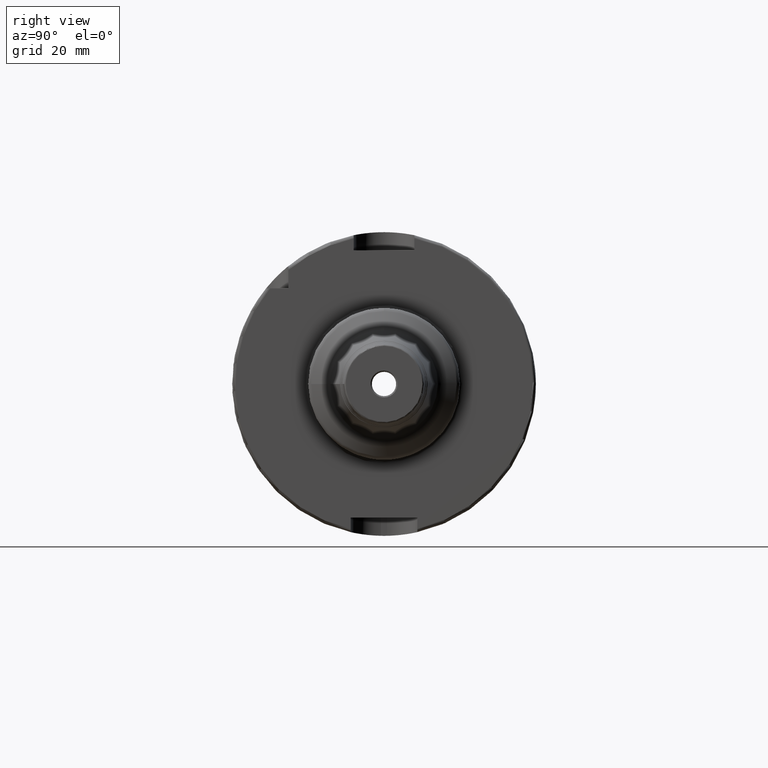
[diagram: clean part render]
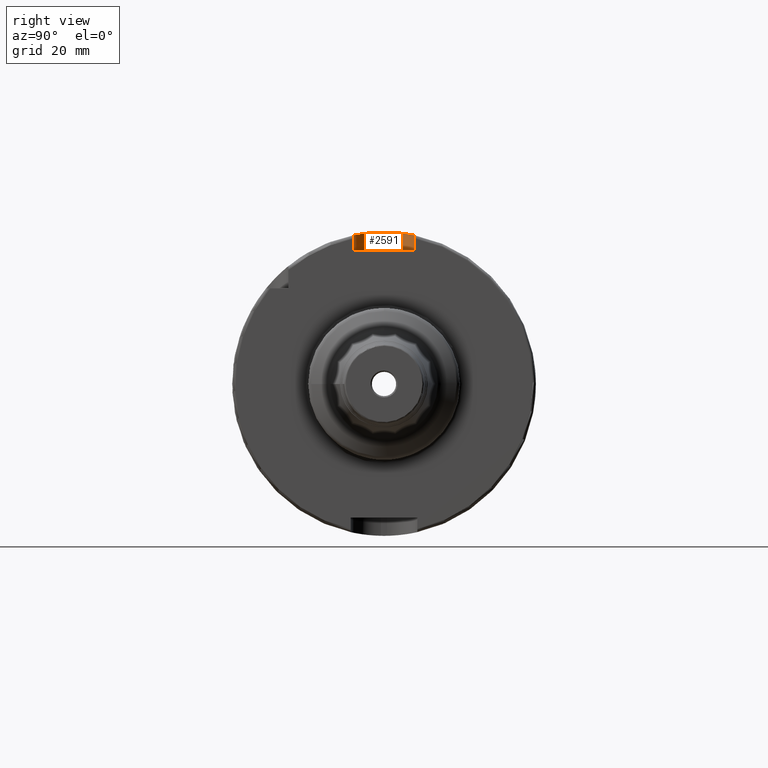
[diagram: same view with one face highlighted and labeled with its STEP entity id]
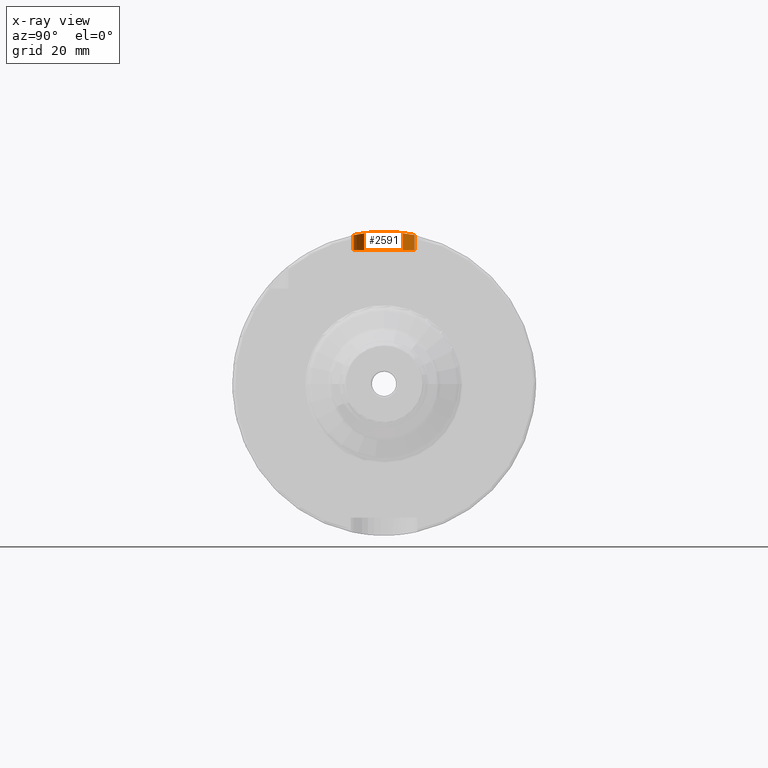
[diagram: x-ray of the same camera — body ghosted, the highlighted face saturated]
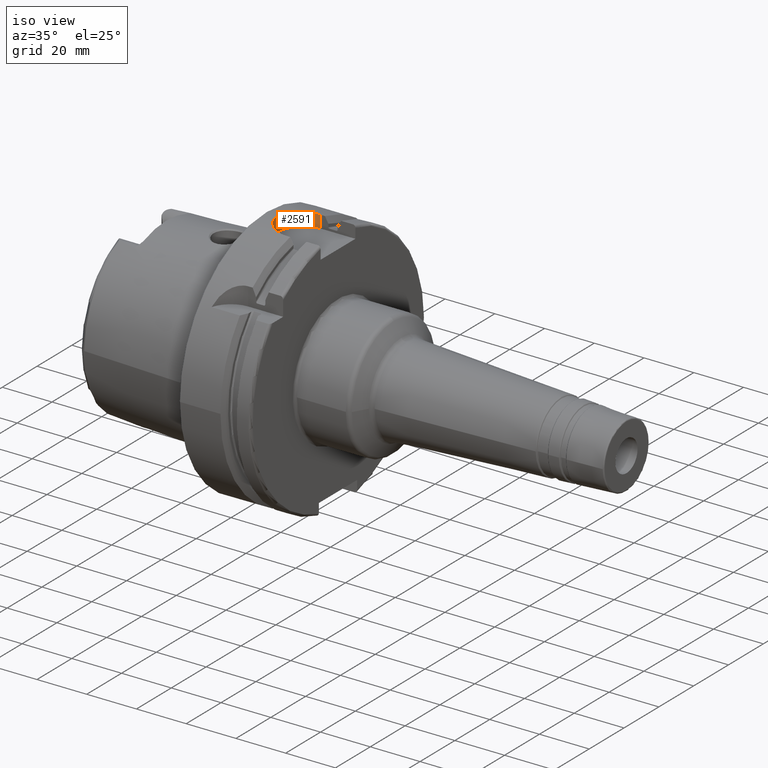
[diagram: same view with one face highlighted and labeled with its STEP entity id]
A machine part, right view. The second image highlights one B-rep face of the part: STEP entity #2591.
The next image is the same camera in x-ray: the body ghosted, the highlighted face saturated — about 0% of this face is hidden behind the body in this view.
A second angle (iso view) of the same face is appended — the face is thin or edge-on in the first view.
In plain terms, the highlighted cylindrical surface (edge-blend (fillet) strip) has radius 10 mm, axis along (0, 0, 1).
Its self-contained STEP definition (entity closure, byte-faithful):
#66=B_SPLINE_CURVE_WITH_KNOTS('',3,(#5067,#5068,#5069,#5070,#5071,#5072,
#5073,#5074,#5075,#5076,#5077,#5078,#5079,#5080,#5081,#5082,#5083,#5084),
 .UNSPECIFIED.,.F.,.F.,(4,2,2,2,2,2,2,2,4),(0.,0.377795255890194,0.755590511780389,
1.13336459804459,1.51113868430879,1.88891277057299,2.26668685683718,2.64448211272738,
3.02227736861757),.UNSPECIFIED.);
#262=LINE('',#5377,#376);
#263=LINE('',#5381,#377);
#376=VECTOR('',#3628,10.);
#377=VECTOR('',#3633,10.);
#416=CYLINDRICAL_SURFACE('',#2912,10.);
#514=FACE_OUTER_BOUND('',#655,.T.);
#655=EDGE_LOOP('',(#2211,#2212,#2213,#2214));
#869=CIRCLE('',#2913,10.);
#1131=VERTEX_POINT('',#5064);
#1132=VERTEX_POINT('',#5066);
#1179=VERTEX_POINT('',#5375);
#1180=VERTEX_POINT('',#5379);
#1475=EDGE_CURVE('',#1131,#1132,#66,.T.);
#1552=EDGE_CURVE('',#1179,#1131,#262,.T.);
#1553=EDGE_CURVE('',#1180,#1179,#869,.T.);
#1554=EDGE_CURVE('',#1180,#1132,#263,.T.);
#2211=ORIENTED_EDGE('',*,*,#1475,.F.);
#2212=ORIENTED_EDGE('',*,*,#1552,.F.);
#2213=ORIENTED_EDGE('',*,*,#1553,.F.);
#2214=ORIENTED_EDGE('',*,*,#1554,.T.);
#2591=ADVANCED_FACE('',(#514),#416,.F.);
#2912=AXIS2_PLACEMENT_3D('',#5378,#3629,#3630);
#2913=AXIS2_PLACEMENT_3D('',#5380,#3631,#3632);
#3628=DIRECTION('',(0.,0.,1.));
#3629=DIRECTION('center_axis',(0.,0.,1.));
#3630=DIRECTION('ref_axis',(0.,1.,0.));
#3631=DIRECTION('center_axis',(0.,0.,1.));
#3632=DIRECTION('ref_axis',(0.,1.,0.));
#3633=DIRECTION('',(0.,0.,1.));
#5064=CARTESIAN_POINT('',(15.,-10.,48.9897948556636));
#5066=CARTESIAN_POINT('',(15.,10.,48.9897948556636));
#5067=CARTESIAN_POINT('Ctrl Pts',(15.,-10.,48.9897948556636));
#5068=CARTESIAN_POINT('Ctrl Pts',(13.740682480366,-10.,48.9897948556636));
#5069=CARTESIAN_POINT('Ctrl Pts',(12.3998222283811,-9.74762796248614,49.0433876618447));
#5070=CARTESIAN_POINT('Ctrl Pts',(9.93707994969945,-8.72605417648382,49.2354150792771));
#5071=CARTESIAN_POINT('Ctrl Pts',(8.81489539818993,-7.95703102192089,49.3709085101933));
#5072=CARTESIAN_POINT('Ctrl Pts',(7.04301862271998,-6.18515424645094,49.6240337638318));
#5073=CARTESIAN_POINT('Ctrl Pts',(6.27395658455242,-5.06294861197626,49.7583347151863));
#5074=CARTESIAN_POINT('Ctrl Pts',(5.25235457764165,-2.60013306081865,49.9476188647081));
#5075=CARTESIAN_POINT('Ctrl Pts',(4.99999999999999,-1.259246954214,50.));
#5076=CARTESIAN_POINT('Ctrl Pts',(4.99999999999999,1.259246954214,50.));
#5077=CARTESIAN_POINT('Ctrl Pts',(5.25235457764165,2.60013306081865,49.9476188647081));
#5078=CARTESIAN_POINT('Ctrl Pts',(6.27395658455242,5.06294861197626,49.7583347151863));
#5079=CARTESIAN_POINT('Ctrl Pts',(7.04301862271998,6.18515424645094,49.6240337638318));
#5080=CARTESIAN_POINT('Ctrl Pts',(8.81489539818993,7.95703102192089,49.3709085101933));
#5081=CARTESIAN_POINT('Ctrl Pts',(9.93707994969945,8.72605417648382,49.2354150792771));
#5082=CARTESIAN_POINT('Ctrl Pts',(12.3998222283811,9.74762796248614,49.0433876618447));
#5083=CARTESIAN_POINT('Ctrl Pts',(13.740682480366,10.,48.9897948556636));
#5084=CARTESIAN_POINT('Ctrl Pts',(15.,10.,48.9897948556636));
#5375=CARTESIAN_POINT('',(15.,-10.,44.));
#5377=CARTESIAN_POINT('',(15.,-10.,44.));
#5378=CARTESIAN_POINT('Origin',(15.,0.,44.));
#5379=CARTESIAN_POINT('',(15.,10.,44.));
#5380=CARTESIAN_POINT('Origin',(15.,0.,44.));
#5381=CARTESIAN_POINT('',(15.,10.,44.));